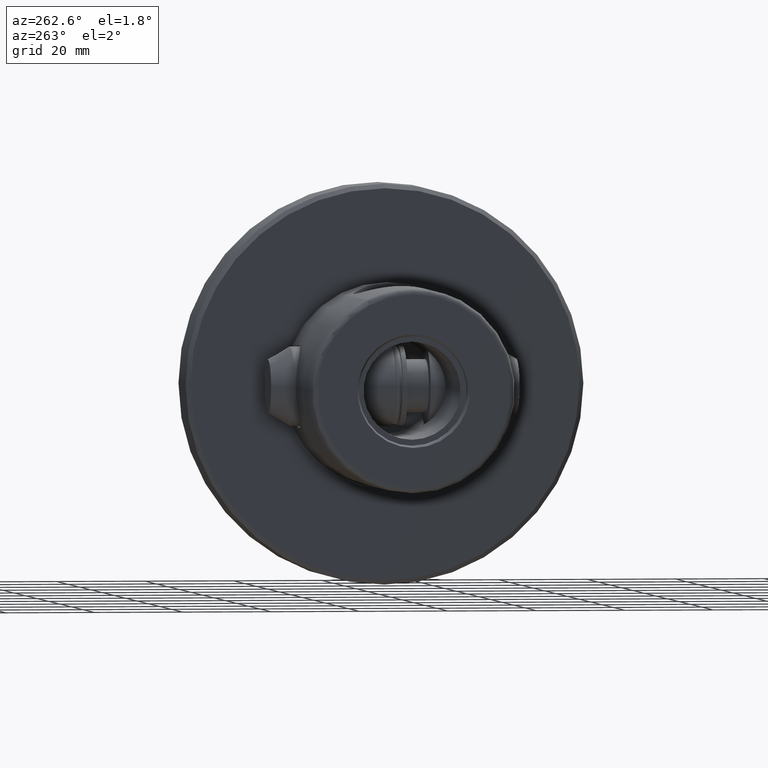
[diagram: clean part render]
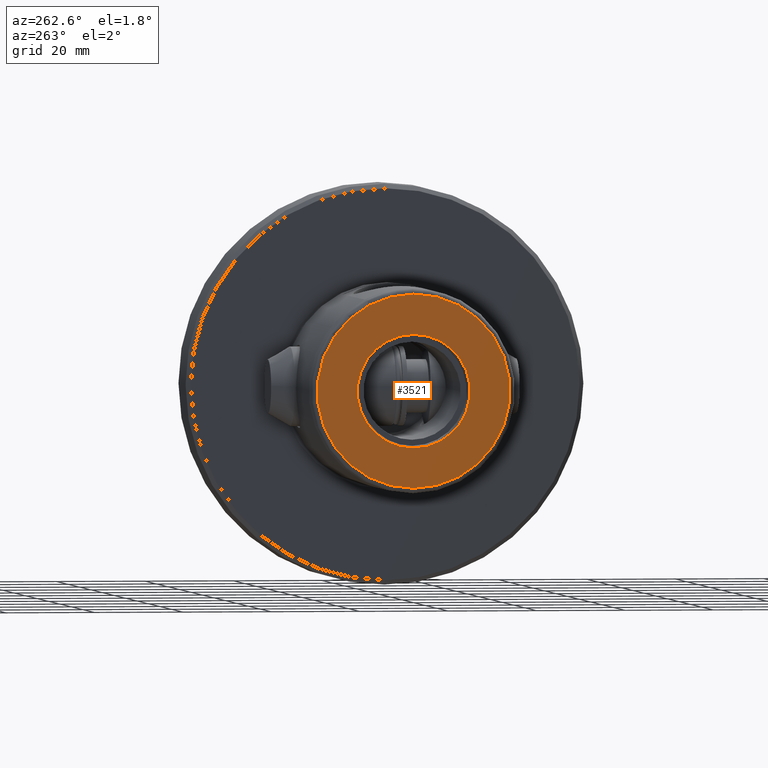
[diagram: same view with one face highlighted and labeled with its STEP entity id]
A machine part, auxiliary view. The second image highlights one B-rep face of the part: STEP entity #3521.
In plain terms, the highlighted planar face has unit normal (1, 0, 0).
Its self-contained STEP definition (entity closure, byte-faithful):
#65 = CIRCLE ( 'NONE', #5839, 12.75000000000000000 ) ;
#169 = CARTESIAN_POINT ( 'NONE',  ( -2.168404344971008900E-016, 0.0000000000000000000, 0.0000000000000000000 ) ) ;
#180 = DIRECTION ( 'NONE',  ( 0.0000000000000000000, 0.0000000000000000000, 1.000000000000000000 ) ) ;
#183 = DIRECTION ( 'NONE',  ( -1.000000000000000000, -0.0000000000000000000, -0.0000000000000000000 ) ) ;
#599 = ORIENTED_EDGE ( 'NONE', *, *, #2814, .T. ) ;
#625 = ORIENTED_EDGE ( 'NONE', *, *, #2726, .F. ) ;
#713 = ORIENTED_EDGE ( 'NONE', *, *, #2512, .F. ) ;
#721 = ORIENTED_EDGE ( 'NONE', *, *, #2993, .T. ) ;
#928 = CIRCLE ( 'NONE', #5881, 21.79999999999998600 ) ;
#1381 = DIRECTION ( 'NONE',  ( 0.0000000000000000000, 0.0000000000000000000, 1.000000000000000000 ) ) ;
#1382 = DIRECTION ( 'NONE',  ( -1.000000000000000000, -0.0000000000000000000, -0.0000000000000000000 ) ) ;
#1390 = CARTESIAN_POINT ( 'NONE',  ( -2.168404344971008900E-016, 0.0000000000000000000, 0.0000000000000000000 ) ) ;
#2512 = EDGE_CURVE ( 'NONE', #7797, #7663, #2569, .T. ) ;
#2569 = CIRCLE ( 'NONE', #5772, 12.75000000000000000 ) ;
#2726 = EDGE_CURVE ( 'NONE', #7663, #7797, #65, .T. ) ;
#2814 = EDGE_CURVE ( 'NONE', #7676, #7675, #928, .T. ) ;
#2993 = EDGE_CURVE ( 'NONE', #7675, #7676, #3791, .T. ) ;
#3521 = ADVANCED_FACE ( 'NONE', ( #8129, #8133 ), #7107, .F. ) ;
#3738 = DIRECTION ( 'NONE',  ( 0.0000000000000000000, 0.0000000000000000000, 1.000000000000000000 ) ) ;
#3743 = CARTESIAN_POINT ( 'NONE',  ( 1.111307226797642000E-015, 0.0000000000000000000, 0.0000000000000000000 ) ) ;
#3745 = DIRECTION ( 'NONE',  ( -1.000000000000000000, -0.0000000000000000000, -0.0000000000000000000 ) ) ;
#3791 = CIRCLE ( 'NONE', #5982, 21.79999999999998600 ) ;
#4020 = CARTESIAN_POINT ( 'NONE',  ( 1.111307226797642000E-015, 1.561424668912875100E-015, -12.75000000000000000 ) ) ;
#4111 = CARTESIAN_POINT ( 'NONE',  ( -2.168404344971008900E-016, 0.0000000000000000000, 21.79999999999998600 ) ) ;
#4112 = CARTESIAN_POINT ( 'NONE',  ( -2.168404344971008900E-016, 2.742092521891342400E-015, -21.79999999999998600 ) ) ;
#4123 = CARTESIAN_POINT ( 'NONE',  ( 1.111307226797642000E-015, 0.0000000000000000000, 12.75000000000000000 ) ) ;
#5772 = AXIS2_PLACEMENT_3D ( 'NONE', #6329, #6327, #6326 ) ;
#5839 = AXIS2_PLACEMENT_3D ( 'NONE', #3743, #3745, #3738 ) ;
#5881 = AXIS2_PLACEMENT_3D ( 'NONE', #169, #183, #180 ) ;
#5982 = AXIS2_PLACEMENT_3D ( 'NONE', #1390, #1382, #1381 ) ;
#6083 = AXIS2_PLACEMENT_3D ( 'NONE', #7106, #7034, #7035 ) ;
#6326 = DIRECTION ( 'NONE',  ( 0.0000000000000000000, 0.0000000000000000000, 1.000000000000000000 ) ) ;
#6327 = DIRECTION ( 'NONE',  ( -1.000000000000000000, -0.0000000000000000000, -0.0000000000000000000 ) ) ;
#6329 = CARTESIAN_POINT ( 'NONE',  ( 1.111307226797642000E-015, 0.0000000000000000000, 0.0000000000000000000 ) ) ;
#7034 = DIRECTION ( 'NONE',  ( 1.000000000000000000, 0.0000000000000000000, 0.0000000000000000000 ) ) ;
#7035 = DIRECTION ( 'NONE',  ( 0.0000000000000000000, 0.0000000000000000000, -1.000000000000000000 ) ) ;
#7106 = CARTESIAN_POINT ( 'NONE',  ( 4.472333961502705800E-016, 21.79999999999998600, 0.0000000000000000000 ) ) ;
#7107 = PLANE ( 'NONE',  #6083 ) ;
#7663 = VERTEX_POINT ( 'NONE', #4123 ) ;
#7675 = VERTEX_POINT ( 'NONE', #4112 ) ;
#7676 = VERTEX_POINT ( 'NONE', #4111 ) ;
#7797 = VERTEX_POINT ( 'NONE', #4020 ) ;
#8048 = EDGE_LOOP ( 'NONE', ( #625, #713 ) ) ;
#8129 = FACE_BOUND ( 'NONE', #8048, .T. ) ;
#8133 = FACE_OUTER_BOUND ( 'NONE', #8367, .T. ) ;
#8367 = EDGE_LOOP ( 'NONE', ( #599, #721 ) ) ;